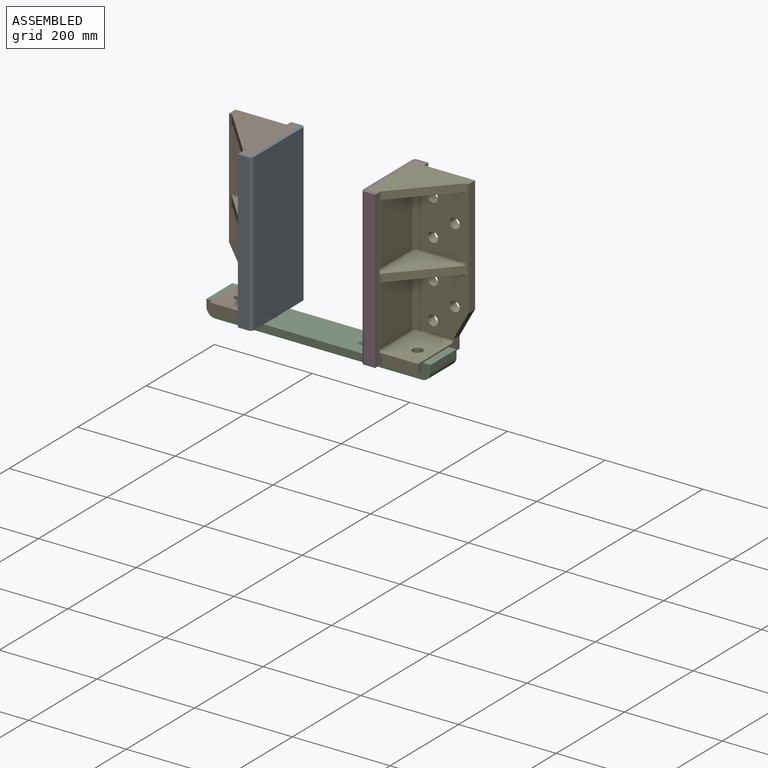
[diagram: assembled view]
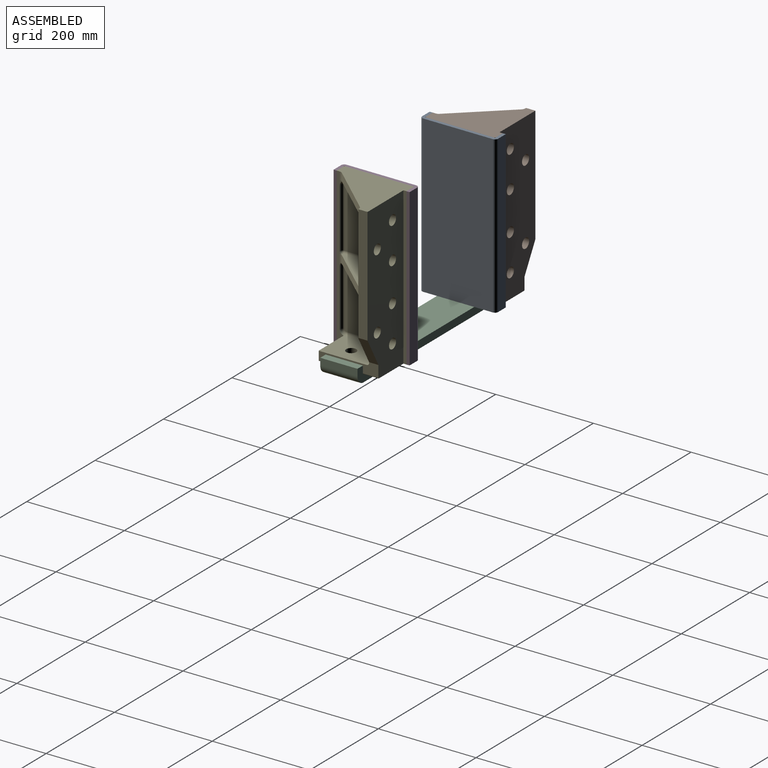
[diagram: assembled view, second angle]
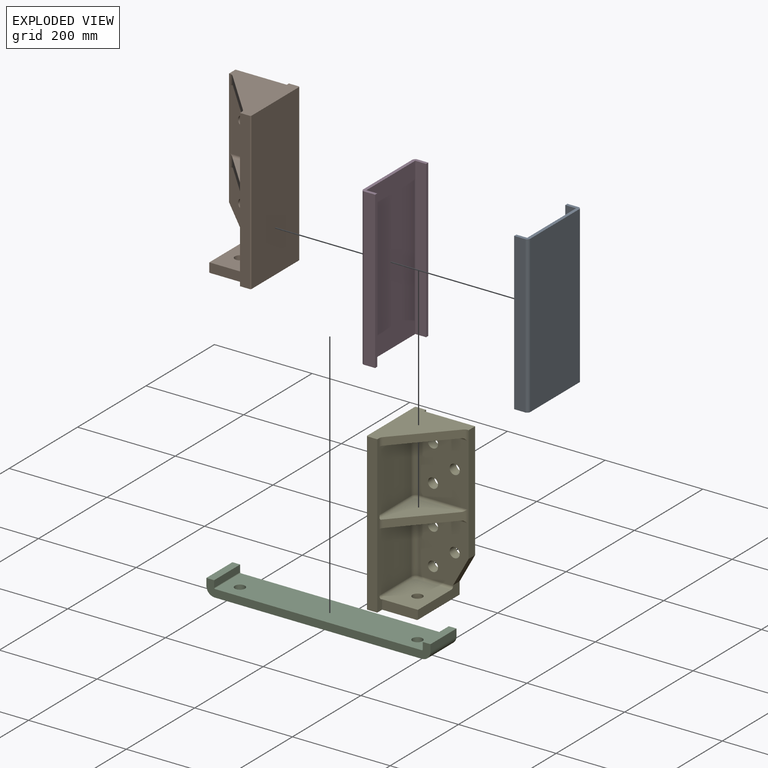
[diagram: exploded view]
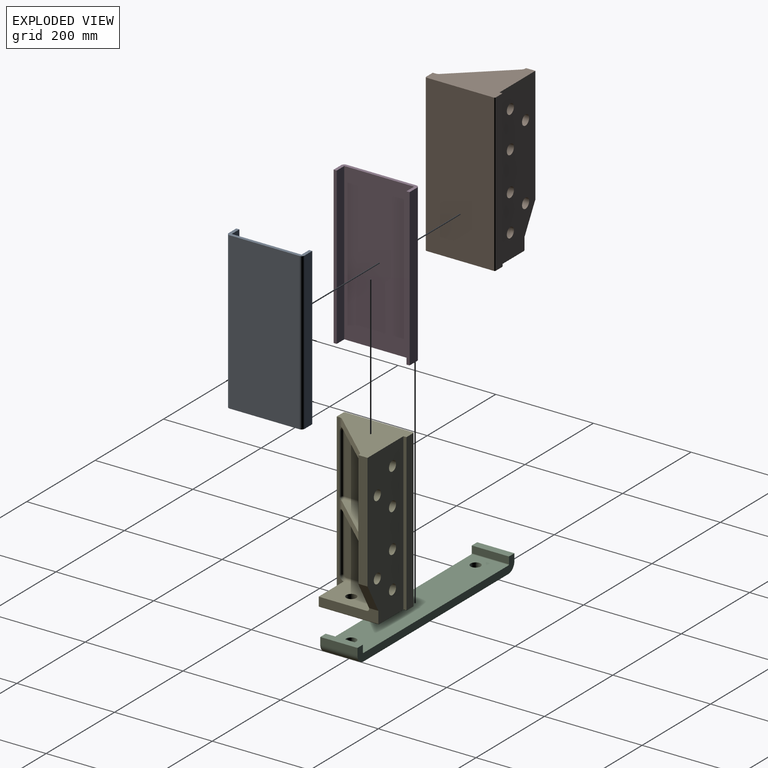
[diagram: exploded view, second angle]
ASSEMBLY  parts=5 mates=4
PART A: 12 faces, bbox 28.6x155.6x320.7 mm
  f0: plane 155.58x28.58mm, normal (0,0,1), area 1252.9mm2, adj f1,f2,f3,f4,f5,f6,f7,f8
  f1: cylinder r=6.35mm len=320.68mm, axis (0,0,-1), area 3198.6mm2, adj f0,f2,f10,f11
  f2: plane 320.68x22.23mm, normal (0,-1,0), area 7127mm2, adj f0,f1,f3,f11
  f3: plane 320.68x6.35mm, normal (1,0,0), area 2036.3mm2, adj f0,f2,f4,f11
  f4: plane 320.68x22.23mm, normal (0,1,0), area 7127mm2, adj f0,f3,f5,f11
  f5: plane 320.68x142.88mm, normal (1,0,0), area 45816.4mm2, adj f0,f4,f6,f11
  f6: plane 320.68x22.23mm, normal (0,-1,0), area 7127mm2, adj f0,f5,f7,f11
  f7: plane 320.68x6.35mm, normal (1,0,0), area 2036.3mm2, adj f0,f6,f8,f11
  f8: plane 320.68x22.23mm, normal (0,1,0), area 7127mm2, adj f0,f7,f9,f11
  f9: cylinder r=6.35mm len=320.68mm, axis (0,0,-1), area 3198.6mm2, adj f0,f8,f10,f11
  f10: plane 320.68x142.88mm, normal (-1,0,0), area 45816.4mm2, adj f0,f1,f9,f11
  f11: plane 155.58x28.58mm, normal (0,0,-1), area 1252.9mm2, adj f1,f2,f3,f4,f5,f6,f7,f8
PART B: 61 faces, bbox 127x142.9x320.7 mm
  f0: plane 320.68x15.88mm, normal (-1,0,0), area 2221.1mm2, adj f3,f9,f10,f11,f12,f14,f18,f19
  f1: plane 126.37x96.52mm, normal (-1,0,0), area 12192.5mm2, adj f30,f31,f32,f33,f48
  f2: plane 296.55x101.6mm, normal (0,-1,0), area 22501mm2, adj f4,f10,f16,f17,f23,f26,f27,f30
  f3: plane 118.75x1.27mm, normal (0,1,0), area 150.8mm2, adj f0,f28,f40,f45
  f4: plane 238.13x19.05mm, normal (-1,0,0), area 4536.3mm2, adj f2,f5,f10,f16
  f5: plane 320.68x104.78mm, normal (0,1,0), area 29877.4mm2, adj f4,f6,f10,f11,f16,f17,f51,f52
  f6: plane 320.68x6.35mm, normal (-1,0,0), area 2036.3mm2, adj f5,f7,f10,f11
  f7: plane 320.68x20.64mm, normal (0,1,0), area 6617.9mm2, adj f6,f10,f11,f60
  f8: plane 320.68x139.7mm, normal (1,0,0), area 44798.3mm2, adj f10,f11,f59,f60
  f9: plane 320.68x20.64mm, normal (0,-1,0), area 6617.9mm2, adj f0,f10,f11,f59
  f10: plane 142.88x127mm, normal (0,0,1), area 10485.3mm2, adj f0,f2,f4,f5,f6,f7,f8,f9
  f11: plane 142.88x93.66mm, normal (0,0,-1), area 11570.7mm2, adj f0,f5,f6,f7,f8,f9,f18,f57
  f12: plane 121.92x1.27mm, normal (0,1,0), area 154.8mm2, adj f0,f29,f31,f50
  f13: plane 96.52x74.3mm, normal (0,0,1), area 6832.2mm2, adj f17,f28,f36,f37,f38,f57
  f14: plane 106.56x95.06mm, normal (0,0,-1), area 4944.2mm2, adj f0,f24,f25,f29,f33,f34,f35
  f15: plane 123.19x96.52mm, normal (-1,0,0), area 11886.1mm2, adj f27,f38,f39,f40,f43
  f16: plane 57.15x31.75mm, normal (-0.87,0,-0.49), area 1245.4mm2, adj f2,f4,f5,f17
  f17: plane 122.24x23.81mm, normal (-1,0,0), area 2261.1mm2, adj f2,f5,f13,f16,f18,f28,f36,f58
  f18: plane 73.03x19.18mm, normal (0,-1,0), area 1400.3mm2, adj f0,f11,f17,f28,f58
  f19: plane 106.56x95.06mm, normal (0,0,1), area 4949.9mm2, adj f0,f21,f22,f46,f47,f48,f50
  f20: plane 106.56x95.06mm, normal (0,0,-1), area 4949.9mm2, adj f0,f21,f22,f41,f42,f43,f45
  f21: cylinder r=9.53mm len=15.88mm, axis (0,0,-1), area 111.8mm2, adj f0,f19,f20,f22
  f22: plane 102.15x93.14mm, normal (-0.74,-0.67,0), area 2194.4mm2, adj f19,f20,f21,f23,f41,f46
  f23: cylinder r=9.53mm len=26.04mm, axis (0,0,-1), area 164.8mm2, adj f2,f22,f41,f46
  f24: cylinder r=9.53mm len=15.88mm, axis (0,0,-1), area 111.8mm2, adj f0,f10,f14,f25
  f25: plane 102.15x93.14mm, normal (-0.74,-0.67,0), area 2194.1mm2, adj f10,f14,f24,f26,f35
  f26: cylinder r=9.53mm len=20.96mm, axis (0,0,-1), area 145.2mm2, adj f2,f10,f25,f35
  f27: cylinder r=9.53mm len=123.19mm, axis (0,0,-1), area 1843.1mm2, adj f2,f15,f37,f42
  f28: cylinder r=9.53mm len=74.3mm, axis (1,0,0), area 135.5mm2, adj f0,f3,f13,f17,f18,f39
  f29: cylinder r=9.53mm len=9.53mm, axis (1,0,0), area 19mm2, adj f0,f12,f14,f32
  f30: cylinder r=9.53mm len=126.37mm, axis (0,0,-1), area 1890.7mm2, adj f1,f2,f34,f47
  f31: cylinder r=5.08mm len=121.92mm, axis (0,0,-1), area 972.9mm2, adj f1,f12,f32,f49
  f32: torus R=4.45mm, axis (-1,0,0), area 96.3mm2, adj f1,f29,f31,f33
  f33: cylinder r=5.08mm len=92.08mm, axis (0,-1,0), area 734.7mm2, adj f1,f14,f32,f34
  f34: torus R=4.45mm, axis (0,0,1), area 96.3mm2, adj f14,f30,f33,f35
  f35: cylinder r=5.08mm len=99.46mm, axis (1,0,0), area 755mm2, adj f2,f14,f25,f26,f34
  f36: cylinder r=5.08mm len=69.85mm, axis (1,0,0), area 557.4mm2, adj f2,f13,f17,f37
  f37: torus R=4.45mm, axis (0,0,-1), area 96.3mm2, adj f13,f27,f36,f38
  f38: cylinder r=5.08mm len=92.08mm, axis (0,1,0), area 734.7mm2, adj f13,f15,f37,f39
  f39: torus R=4.45mm, axis (-1,0,0), area 96.3mm2, adj f15,f28,f38,f40
  f40: cylinder r=5.08mm len=118.75mm, axis (0,0,-1), area 947.5mm2, adj f3,f15,f39,f44
  f41: cylinder r=5.08mm len=99.46mm, axis (1,0,0), area 755mm2, adj f2,f20,f22,f23,f42
  f42: torus R=4.45mm, axis (0,0,1), area 96.3mm2, adj f20,f27,f41,f43
  f43: cylinder r=5.08mm len=96.52mm, axis (0,1,0), area 770.2mm2, adj f15,f20,f42,f44
  f44: sphere r=5.08mm, area 40.5mm2, adj f40,f43,f45
  f45: cylinder r=5.08mm len=5.08mm, axis (-1,0,0), area 10.1mm2, adj f0,f3,f20,f44
  f46: cylinder r=5.08mm len=99.46mm, axis (-1,0,0), area 755mm2, adj f2,f19,f22,f23,f47
  f47: torus R=4.45mm, axis (0,0,1), area 96.3mm2, adj f19,f30,f46,f48
  f48: cylinder r=5.08mm len=96.52mm, axis (0,-1,0), area 770.2mm2, adj f1,f19,f47,f49
  f49: sphere r=5.08mm, area 40.5mm2, adj f31,f48,f50
  f50: cylinder r=5.08mm len=5.08mm, axis (1,0,0), area 10.1mm2, adj f0,f12,f19,f49
  f51: cylinder r=10.32mm len=20.64mm, axis (0,1,0), area 1235.1mm2, adj f2,f5
  f52: cylinder r=10.32mm len=20.64mm, axis (0,1,0), area 1235.1mm2, adj f2,f5
  f53: cylinder r=10.32mm len=20.64mm, axis (0,1,0), area 1235.1mm2, adj f2,f5
  f54: cylinder r=10.32mm len=20.64mm, axis (0,1,0), area 1235.1mm2, adj f2,f5
  f55: cylinder r=10.32mm len=20.64mm, axis (0,1,0), area 1235.1mm2, adj f2,f5
  f56: cylinder r=10.32mm len=20.64mm, axis (0,1,0), area 1235.1mm2, adj f2,f5
  f57: cylinder r=10.32mm len=20.64mm, axis (0,0,1), area 1235.1mm2, adj f11,f13
  f58: cylinder r=1.59mm len=122.24mm, axis (0,1,0), area 304.8mm2, adj f5,f11,f17,f18
  f59: plane 320.68x1.59mm, normal (0.71,-0.71,0), area 719.9mm2, adj f8,f9,f10,f11
  f60: plane 320.68x1.59mm, normal (0.71,0.71,0), area 719.9mm2, adj f7,f8,f10,f11
PART C: 16 faces, bbox 458.8x76.2x31.8 mm
  f0: plane 76.2x14.29mm, normal (1,0,0), area 1088.7mm2, adj f1,f11,f12,f13
  f1: plane 76.2x15.88mm, normal (0,0,1), area 1209.7mm2, adj f0,f2,f12,f13
  f2: plane 76.2x14.29mm, normal (-1,0,0), area 1088.7mm2, adj f1,f3,f12,f13
  f3: cylinder r=17.46mm len=76.2mm, axis (0,1,0), area 2090.2mm2, adj f2,f4,f12,f13
  f4: plane 423.86x76.2mm, normal (0,0,-1), area 31629.3mm2, adj f3,f5,f12,f13,f14,f15
  f5: cylinder r=17.46mm len=76.2mm, axis (0,1,0), area 2090.2mm2, adj f4,f6,f12,f13
  f6: plane 76.2x14.29mm, normal (1,0,0), area 1088.7mm2, adj f5,f7,f12,f13
  f7: plane 76.2x15.88mm, normal (0,0,1), area 1209.7mm2, adj f6,f8,f12,f13
  f8: plane 76.2x14.29mm, normal (-1,0,0), area 1088.7mm2, adj f7,f9,f12,f13
  f9: cylinder r=1.59mm len=76.2mm, axis (0,1,0), area 190mm2, adj f8,f10,f12,f13
  f10: plane 423.86x76.2mm, normal (0,0,1), area 31629.3mm2, adj f9,f11,f12,f13,f14,f15
  f11: cylinder r=1.59mm len=76.2mm, axis (0,1,0), area 190mm2, adj f0,f10,f12,f13
  f12: plane 458.79x31.75mm, normal (0,-1,0), area 7657.5mm2, adj f0,f1,f2,f3,f4,f5,f6,f7
  f13: plane 458.79x31.75mm, normal (0,1,0), area 7657.5mm2, adj f0,f1,f2,f3,f4,f5,f6,f7
  f14: cylinder r=10.32mm len=20.64mm, axis (0,0,1), area 1029.2mm2, adj f4,f10
  f15: cylinder r=10.32mm len=20.64mm, axis (0,0,1), area 1029.2mm2, adj f4,f10
PART D: same geometry as A
PART E: 61 faces, bbox 127x142.9x320.7 mm
  f0: plane 320.68x15.88mm, normal (1,0,0), area 2221.1mm2, adj f3,f9,f10,f11,f12,f14,f18,f19
  f1: plane 126.37x96.52mm, normal (1,0,0), area 12192.5mm2, adj f30,f31,f32,f33,f48
  f2: plane 296.55x101.6mm, normal (0,-1,0), area 22501mm2, adj f4,f10,f16,f17,f23,f26,f27,f30
  f3: plane 118.75x1.27mm, normal (0,1,0), area 150.8mm2, adj f0,f28,f40,f45
  f4: plane 238.13x19.05mm, normal (1,0,0), area 4536.3mm2, adj f2,f5,f10,f16
  f5: plane 320.68x104.78mm, normal (0,1,0), area 29877.4mm2, adj f4,f6,f10,f11,f16,f17,f51,f52
  f6: plane 320.68x6.35mm, normal (1,0,0), area 2036.3mm2, adj f5,f7,f10,f11
  f7: plane 320.68x20.64mm, normal (0,1,0), area 6617.9mm2, adj f6,f10,f11,f60
  f8: plane 320.68x139.7mm, normal (-1,0,0), area 44798.3mm2, adj f10,f11,f59,f60
  f9: plane 320.68x20.64mm, normal (0,-1,0), area 6617.9mm2, adj f0,f10,f11,f59
  f10: plane 142.88x127mm, normal (0,0,1), area 10485.3mm2, adj f0,f2,f4,f5,f6,f7,f8,f9
  f11: plane 142.88x93.66mm, normal (0,0,-1), area 11570.7mm2, adj f0,f5,f6,f7,f8,f9,f18,f57
  f12: plane 121.92x1.27mm, normal (0,1,0), area 154.8mm2, adj f0,f29,f31,f50
  f13: plane 96.52x74.3mm, normal (0,0,1), area 6832.2mm2, adj f17,f28,f36,f37,f38,f57
  f14: plane 106.56x95.06mm, normal (0,0,-1), area 4944.2mm2, adj f0,f24,f25,f29,f33,f34,f35
  f15: plane 123.19x96.52mm, normal (1,0,0), area 11886.1mm2, adj f27,f38,f39,f40,f43
  f16: plane 57.15x31.75mm, normal (0.87,0,-0.49), area 1245.4mm2, adj f2,f4,f5,f17
  f17: plane 122.24x23.81mm, normal (1,0,0), area 2261.1mm2, adj f2,f5,f13,f16,f18,f28,f36,f58
  f18: plane 73.03x19.18mm, normal (0,-1,0), area 1400.3mm2, adj f0,f11,f17,f28,f58
  f19: plane 106.56x95.06mm, normal (0,0,1), area 4949.9mm2, adj f0,f21,f22,f46,f47,f48,f50
  f20: plane 106.56x95.06mm, normal (0,0,-1), area 4949.9mm2, adj f0,f21,f22,f41,f42,f43,f45
  f21: cylinder r=9.53mm len=15.88mm, axis (0,0,-1), area 111.8mm2, adj f0,f19,f20,f22
  f22: plane 102.15x93.14mm, normal (0.74,-0.67,0), area 2194.4mm2, adj f19,f20,f21,f23,f41,f46
  f23: cylinder r=9.53mm len=26.04mm, axis (0,0,-1), area 164.8mm2, adj f2,f22,f41,f46
  f24: cylinder r=9.53mm len=15.88mm, axis (0,0,-1), area 111.8mm2, adj f0,f10,f14,f25
  f25: plane 102.15x93.14mm, normal (0.74,-0.67,0), area 2194.1mm2, adj f10,f14,f24,f26,f35
  f26: cylinder r=9.53mm len=20.96mm, axis (0,0,-1), area 145.2mm2, adj f2,f10,f25,f35
  f27: cylinder r=9.53mm len=123.19mm, axis (0,0,-1), area 1843.1mm2, adj f2,f15,f37,f42
  f28: cylinder r=9.53mm len=74.3mm, axis (-1,0,0), area 135.5mm2, adj f0,f3,f13,f17,f18,f39
  f29: cylinder r=9.53mm len=9.53mm, axis (-1,0,0), area 19mm2, adj f0,f12,f14,f32
  f30: cylinder r=9.53mm len=126.37mm, axis (0,0,-1), area 1890.7mm2, adj f1,f2,f34,f47
  f31: cylinder r=5.08mm len=121.92mm, axis (0,0,-1), area 972.9mm2, adj f1,f12,f32,f49
  f32: torus R=4.45mm, axis (1,0,0), area 96.3mm2, adj f1,f29,f31,f33
  f33: cylinder r=5.08mm len=92.08mm, axis (0,-1,0), area 734.7mm2, adj f1,f14,f32,f34
  f34: torus R=4.45mm, axis (0,0,1), area 96.3mm2, adj f14,f30,f33,f35
  f35: cylinder r=5.08mm len=99.46mm, axis (-1,0,0), area 755mm2, adj f2,f14,f25,f26,f34
  f36: cylinder r=5.08mm len=69.85mm, axis (-1,0,0), area 557.4mm2, adj f2,f13,f17,f37
  f37: torus R=4.45mm, axis (0,0,-1), area 96.3mm2, adj f13,f27,f36,f38
  f38: cylinder r=5.08mm len=92.08mm, axis (0,1,0), area 734.7mm2, adj f13,f15,f37,f39
  f39: torus R=4.45mm, axis (1,0,0), area 96.3mm2, adj f15,f28,f38,f40
  f40: cylinder r=5.08mm len=118.75mm, axis (0,0,-1), area 947.5mm2, adj f3,f15,f39,f44
  f41: cylinder r=5.08mm len=99.46mm, axis (-1,0,0), area 755mm2, adj f2,f20,f22,f23,f42
  f42: torus R=4.45mm, axis (0,0,1), area 96.3mm2, adj f20,f27,f41,f43
  f43: cylinder r=5.08mm len=96.52mm, axis (0,1,0), area 770.2mm2, adj f15,f20,f42,f44
  f44: sphere r=5.08mm, area 40.5mm2, adj f40,f43,f45
  f45: cylinder r=5.08mm len=5.08mm, axis (1,0,0), area 10.1mm2, adj f0,f3,f20,f44
  f46: cylinder r=5.08mm len=99.46mm, axis (1,0,0), area 755mm2, adj f2,f19,f22,f23,f47
  f47: torus R=4.45mm, axis (0,0,1), area 96.3mm2, adj f19,f30,f46,f48
  f48: cylinder r=5.08mm len=96.52mm, axis (0,-1,0), area 770.2mm2, adj f1,f19,f47,f49
  f49: sphere r=5.08mm, area 40.5mm2, adj f31,f48,f50
  f50: cylinder r=5.08mm len=5.08mm, axis (-1,0,0), area 10.1mm2, adj f0,f12,f19,f49
  f51: cylinder r=10.32mm len=20.64mm, axis (0,1,0), area 1235.1mm2, adj f2,f5
  f52: cylinder r=10.32mm len=20.64mm, axis (0,1,0), area 1235.1mm2, adj f2,f5
  f53: cylinder r=10.32mm len=20.64mm, axis (0,1,0), area 1235.1mm2, adj f2,f5
  f54: cylinder r=10.32mm len=20.64mm, axis (0,1,0), area 1235.1mm2, adj f2,f5
  f55: cylinder r=10.32mm len=20.64mm, axis (0,1,0), area 1235.1mm2, adj f2,f5
  f56: cylinder r=10.32mm len=20.64mm, axis (0,1,0), area 1235.1mm2, adj f2,f5
  f57: cylinder r=10.32mm len=20.64mm, axis (0,0,1), area 1235.1mm2, adj f11,f13
  f58: cylinder r=1.59mm len=122.24mm, axis (0,1,0), area 304.8mm2, adj f5,f11,f17,f18
  f59: plane 320.68x1.59mm, normal (-0.71,-0.71,0), area 719.9mm2, adj f8,f9,f10,f11
  f60: plane 320.68x1.59mm, normal (-0.71,0.71,0), area 719.9mm2, adj f7,f8,f10,f11
PLACE A rot(axis=(0,1,0),180deg) t=(-118.27,76.03,336.55)mm
PLACE B t=(118.27,76.03,15.87)mm
PLACE C t=(118.27,76.03,15.87)mm
PLACE D t=(118.27,76.03,15.87)mm
PLACE E t=(118.27,76.03,15.87)mm
MATE fastened D.f5 <-> E.f8  axis (1,0,0) through (118.27,4.59,176.21)mm
MATE fastened E.f57 <-> C.f15  axis (0,0,-1) through (181.77,-8.11,15.87)mm
MATE fastened A.f5 <-> B.f8  axis (-1,0,0) through (-118.27,4.59,176.21)mm
MATE fastened B.f57 <-> C.f14  axis (0,0,-1) through (-181.77,-8.11,15.87)mm
